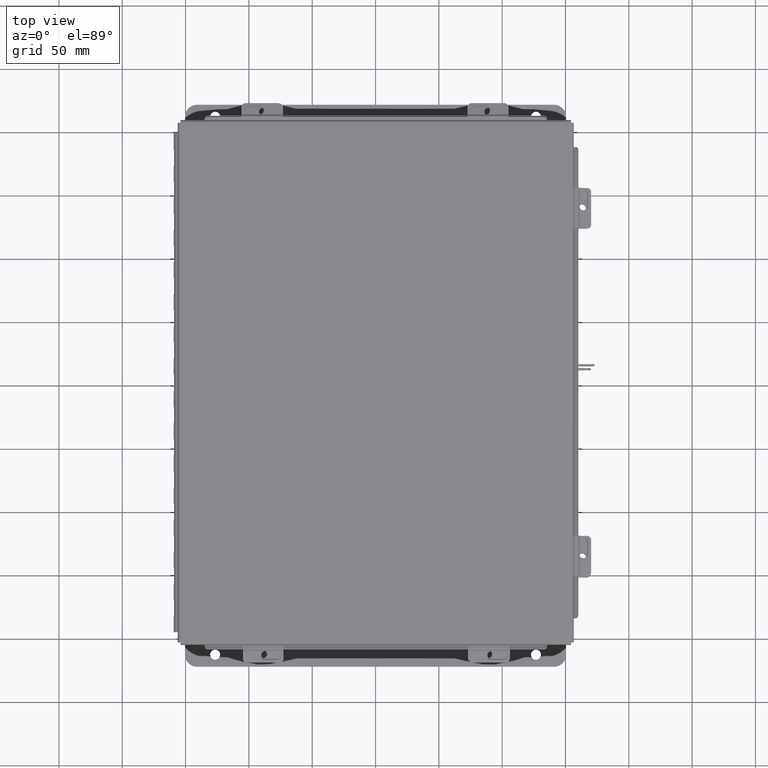
[diagram: clean part render]
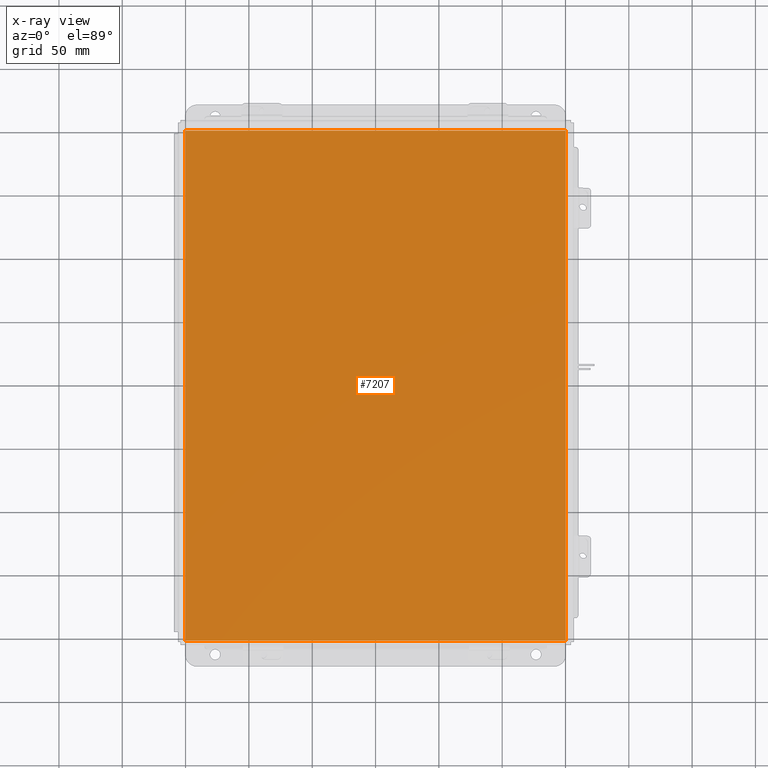
[diagram: x-ray — body ghosted, one internal face saturated and labeled with its STEP entity id]
A machine part, top view, then the same camera in x-ray: the body is ghosted and one INTERNAL B-rep face — a face not visible from any outside direction — is saturated and labeled: STEP entity #7207.
In plain terms, the highlighted planar face has unit normal (0, 0, -1).
Its self-contained STEP definition (entity closure, byte-faithful):
#325 = CARTESIAN_POINT ( 'NONE',  ( 5.912300000000000100, -7.925300000000000000, 4.268512490100411300E-017 ) ) ;
#447 = VECTOR ( 'NONE', #4406, 39.37007874015748100 ) ;
#1565 = VERTEX_POINT ( 'NONE', #7720 ) ;
#1608 = ORIENTED_EDGE ( 'NONE', *, *, #14667, .F. ) ;
#1774 = VERTEX_POINT ( 'NONE', #325 ) ;
#2186 = DIRECTION ( 'NONE',  ( 0.0000000000000000000, 0.0000000000000000000, -1.000000000000000000 ) ) ;
#2283 = ORIENTED_EDGE ( 'NONE', *, *, #6815, .T. ) ;
#4332 = LINE ( 'NONE', #18690, #12581 ) ;
#4406 = DIRECTION ( 'NONE',  ( -1.000000000000000000, -0.0000000000000000000, -0.0000000000000000000 ) ) ;
#4892 = VECTOR ( 'NONE', #19172, 39.37007874015748100 ) ;
#4999 = VERTEX_POINT ( 'NONE', #18150 ) ;
#5180 = VECTOR ( 'NONE', #17673, 39.37007874015748100 ) ;
#6003 = CARTESIAN_POINT ( 'NONE',  ( -6.000000000000000900, 7.925299999999998200, 0.0000000000000000000 ) ) ;
#6804 = CARTESIAN_POINT ( 'NONE',  ( -5.912300000000000100, -7.925300000000000900, 4.268512490100411300E-017 ) ) ;
#6815 = EDGE_CURVE ( 'NONE', #4999, #1774, #4332, .T. ) ;
#6999 = VERTEX_POINT ( 'NONE', #16928 ) ;
#7007 = EDGE_CURVE ( 'NONE', #6999, #1565, #8711, .T. ) ;
#7207 = ADVANCED_FACE ( 'NONE', ( #13137 ), #16553, .F. ) ;
#7720 = CARTESIAN_POINT ( 'NONE',  ( -5.912300000000000100, 7.925299999999998200, 4.268512490100411300E-017 ) ) ;
#8285 = CARTESIAN_POINT ( 'NONE',  ( 0.0000000000000000000, 0.0000000000000000000, 0.0000000000000000000 ) ) ;
#8711 = LINE ( 'NONE', #6003, #447 ) ;
#10225 = DIRECTION ( 'NONE',  ( 1.000000000000000000, 0.0000000000000000000, 0.0000000000000000000 ) ) ;
#11043 = EDGE_LOOP ( 'NONE', ( #15167, #17391, #1608, #2283 ) ) ;
#11433 = DIRECTION ( 'NONE',  ( -1.000000000000000000, 0.0000000000000000000, -0.0000000000000000000 ) ) ;
#12581 = VECTOR ( 'NONE', #10225, 39.37007874015748100 ) ;
#12876 = CARTESIAN_POINT ( 'NONE',  ( 5.912300000000000100, 7.925300000000000000, 4.268512490100411300E-017 ) ) ;
#13137 = FACE_OUTER_BOUND ( 'NONE', #11043, .T. ) ;
#13424 = LINE ( 'NONE', #6804, #5180 ) ;
#14667 = EDGE_CURVE ( 'NONE', #4999, #1565, #13424, .T. ) ;
#15167 = ORIENTED_EDGE ( 'NONE', *, *, #15419, .F. ) ;
#15419 = EDGE_CURVE ( 'NONE', #6999, #1774, #17294, .T. ) ;
#16553 = PLANE ( 'NONE',  #18191 ) ;
#16928 = CARTESIAN_POINT ( 'NONE',  ( 5.912300000000000100, 7.925299999999997300, 4.268512490100411300E-017 ) ) ;
#17294 = LINE ( 'NONE', #12876, #4892 ) ;
#17391 = ORIENTED_EDGE ( 'NONE', *, *, #7007, .T. ) ;
#17673 = DIRECTION ( 'NONE',  ( -0.0000000000000000000, 1.000000000000000000, -0.0000000000000000000 ) ) ;
#18150 = CARTESIAN_POINT ( 'NONE',  ( -5.912300000000000100, -7.925300000000000000, 4.268512490100411300E-017 ) ) ;
#18191 = AXIS2_PLACEMENT_3D ( 'NONE', #8285, #2186, #11433 ) ;
#18690 = CARTESIAN_POINT ( 'NONE',  ( -6.000000000000000900, -7.925300000000000000, 0.0000000000000000000 ) ) ;
#19172 = DIRECTION ( 'NONE',  ( -0.0000000000000000000, -1.000000000000000000, -0.0000000000000000000 ) ) ;